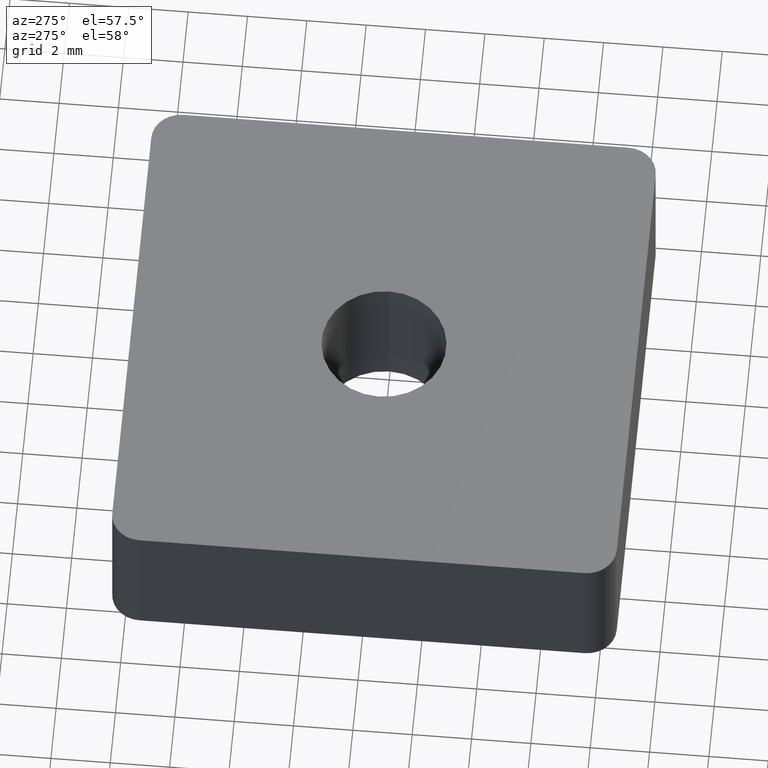
[diagram: clean part render]
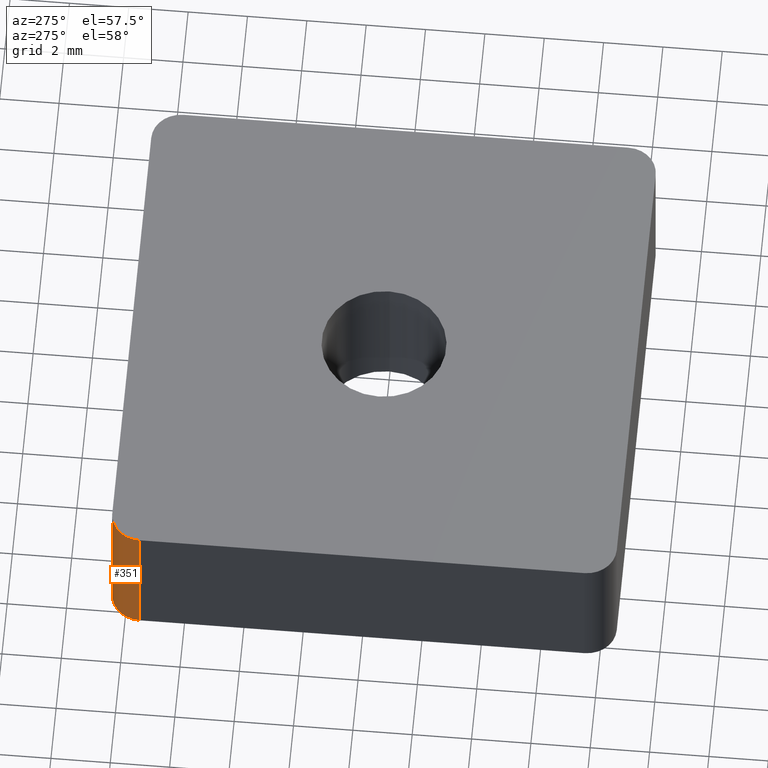
[diagram: same view with one face highlighted and labeled with its STEP entity id]
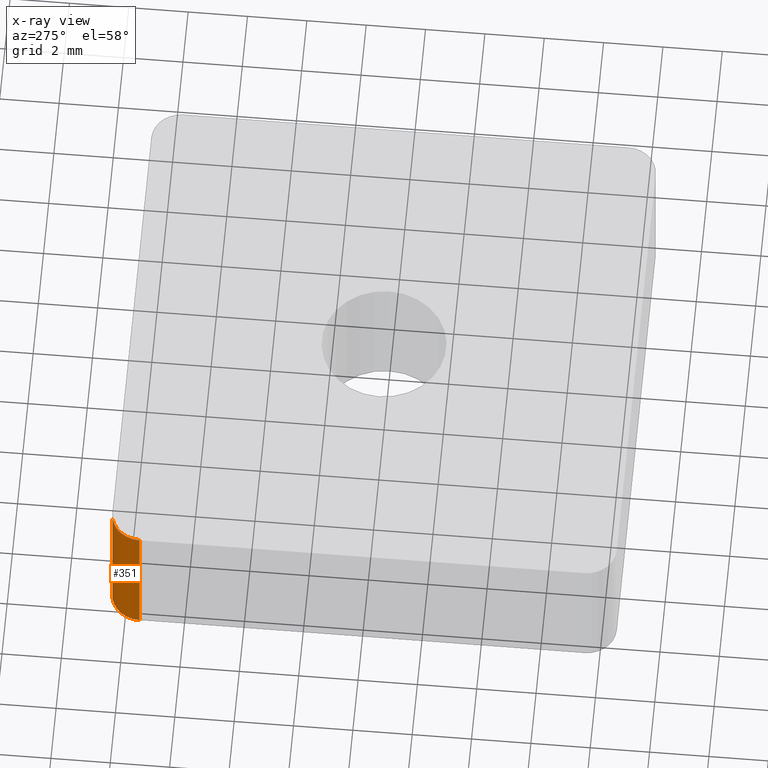
[diagram: x-ray of the same camera — body ghosted, the highlighted face saturated]
A machine part, auxiliary view. The second image highlights one B-rep face of the part: STEP entity #351.
The next image is the same camera in x-ray: the body ghosted, the highlighted face saturated — about 0% of this face is hidden behind the body in this view.
In plain terms, the highlighted cylindrical surface (edge-blend (fillet) strip) has radius 1 mm, axis along (0, 0, -1).
Its self-contained STEP definition (entity closure, byte-faithful):
#49=CARTESIAN_POINT('',(-8.500000000000000,7.500000000000012,0.0));
#50=VERTEX_POINT('',#49);
#59=CARTESIAN_POINT('',(-8.500000000000000,7.500000000000012,-5.0));
#60=VERTEX_POINT('',#59);
#61=CARTESIAN_POINT('',(-8.500000000000000,7.500000000000012,0.0));
#62=DIRECTION('',(0.0,0.0,-1.0));
#63=VECTOR('',#62,5.0);
#64=LINE('',#61,#63);
#65=EDGE_CURVE('',#50,#60,#64,.T.);
#171=CARTESIAN_POINT('',(-7.500000000000000,8.500000000000011,0.0));
#172=VERTEX_POINT('',#171);
#187=CARTESIAN_POINT('',(-7.500000000000000,8.500000000000011,-5.0));
#188=VERTEX_POINT('',#187);
#195=CARTESIAN_POINT('',(-7.500000000000000,8.500000000000011,-5.0));
#196=DIRECTION('',(0.0,0.0,1.0));
#197=VECTOR('',#196,5.0);
#198=LINE('',#195,#197);
#199=EDGE_CURVE('',#188,#172,#198,.T.);
#218=CARTESIAN_POINT('',(-7.500000000000000,7.500000000000012,0.0));
#219=DIRECTION('',(0.0,0.0,1.0));
#220=DIRECTION('',(1.0,0.0,0.0));
#221=AXIS2_PLACEMENT_3D('',#218,#219,#220);
#222=CIRCLE('',#221,1.000000000000001);
#223=EDGE_CURVE('',#172,#50,#222,.T.);
#284=CARTESIAN_POINT('',(-7.500000000000000,7.500000000000012,-5.0));
#285=DIRECTION('',(0.0,0.0,-1.0));
#286=DIRECTION('',(1.0,0.0,0.0));
#287=AXIS2_PLACEMENT_3D('',#284,#285,#286);
#288=CIRCLE('',#287,1.000000000000001);
#289=EDGE_CURVE('',#60,#188,#288,.T.);
#340=CARTESIAN_POINT('',(-7.500000000000000,7.500000000000012,1.000000E-008));
#341=DIRECTION('',(0.0,0.0,-1.0));
#342=DIRECTION('',(0.707106781186547,-0.707106781186548,0.0));
#343=AXIS2_PLACEMENT_3D('',#340,#341,#342);
#344=CYLINDRICAL_SURFACE('',#343,1.000000000000001);
#345=ORIENTED_EDGE('',*,*,#223,.F.);
#346=ORIENTED_EDGE('',*,*,#199,.F.);
#347=ORIENTED_EDGE('',*,*,#289,.F.);
#348=ORIENTED_EDGE('',*,*,#65,.F.);
#349=EDGE_LOOP('',(#345,#346,#347,#348));
#350=FACE_OUTER_BOUND('',#349,.T.);
#351=ADVANCED_FACE('',(#350),#344,.T.);